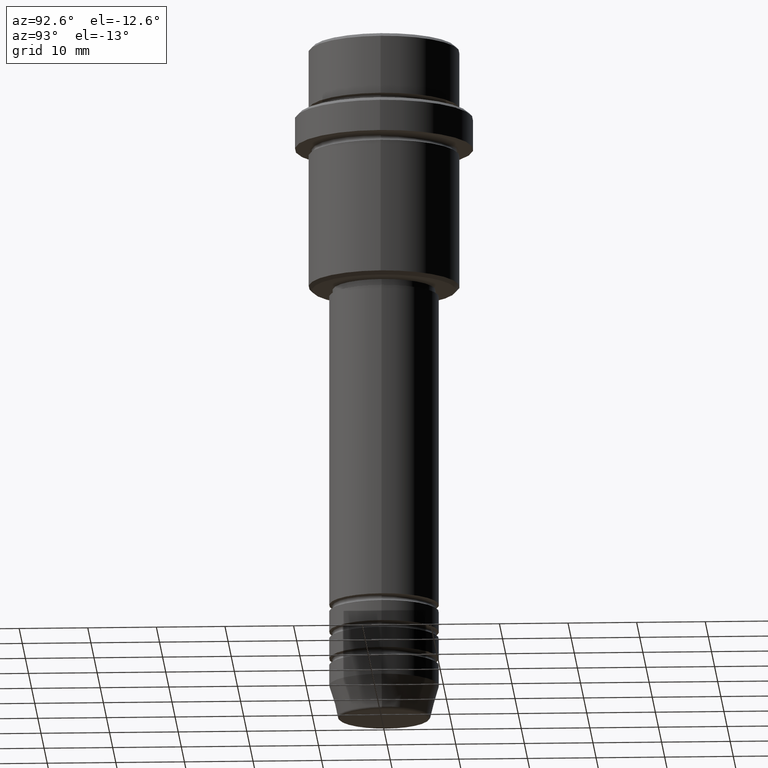
[diagram: clean part render]
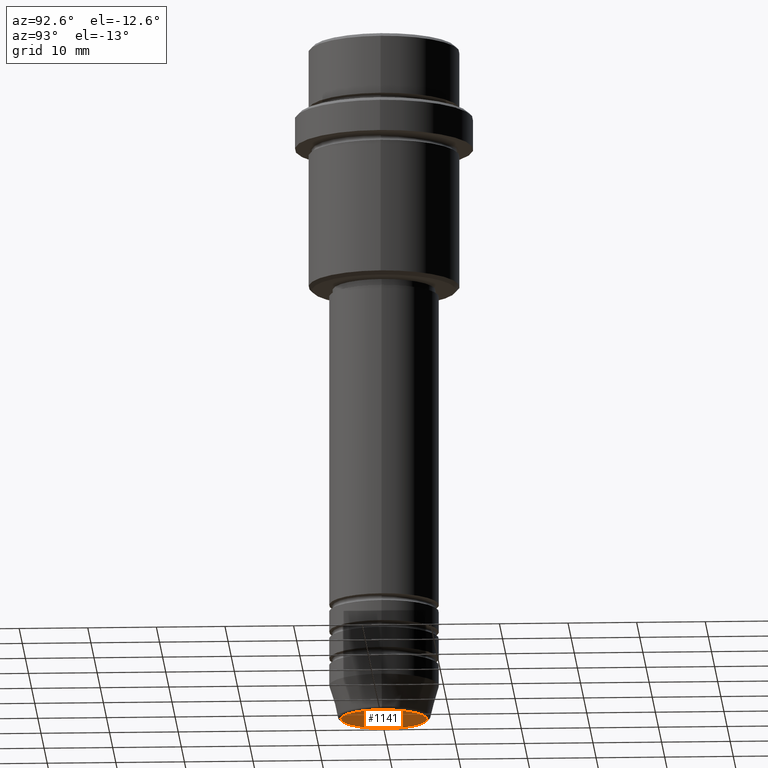
[diagram: same view with one face highlighted and labeled with its STEP entity id]
A machine part, auxiliary view. The second image highlights one B-rep face of the part: STEP entity #1141.
In plain terms, the highlighted planar face has unit normal (0, -0, 1).
Its self-contained STEP definition (entity closure, byte-faithful):
#120 = DIRECTION ( 'NONE',  ( 0.000000000000000000, -0.000000000000000000, 1.000000000000000000 ) ) ;
#132 = AXIS2_PLACEMENT_3D ( 'NONE', #1392, #1011, #452 ) ;
#140 = DIRECTION ( 'NONE',  ( 1.000000000000000000, 0.000000000000000000, 0.000000000000000000 ) ) ;
#168 = AXIS2_PLACEMENT_3D ( 'NONE', #1217, #218, #140 ) ;
#182 = ORIENTED_EDGE ( 'NONE', *, *, #1308, .T. ) ;
#189 = CARTESIAN_POINT ( 'NONE',  ( 6.276590543854900339, 0.000000000000000000, -100.0000000000000000 ) ) ;
#218 = DIRECTION ( 'NONE',  ( 0.000000000000000000, 0.000000000000000000, -1.000000000000000000 ) ) ;
#282 = AXIS2_PLACEMENT_3D ( 'NONE', #403, #120, #1034 ) ;
#297 = EDGE_CURVE ( 'NONE', #550, #1072, #1156, .T. ) ;
#403 = CARTESIAN_POINT ( 'NONE',  ( 0.000000000000000000, 0.000000000000000000, -100.0000000000000000 ) ) ;
#452 = DIRECTION ( 'NONE',  ( 1.000000000000000000, 0.000000000000000000, 0.000000000000000000 ) ) ;
#461 = ORIENTED_EDGE ( 'NONE', *, *, #297, .T. ) ;
#550 = VERTEX_POINT ( 'NONE', #953 ) ;
#848 = FACE_OUTER_BOUND ( 'NONE', #1009, .T. ) ;
#953 = CARTESIAN_POINT ( 'NONE',  ( -6.276590543854900339, 7.982336011935116411E-16, -100.0000000000000000 ) ) ;
#1009 = EDGE_LOOP ( 'NONE', ( #182, #461 ) ) ;
#1011 = DIRECTION ( 'NONE',  ( 0.000000000000000000, 0.000000000000000000, -1.000000000000000000 ) ) ;
#1034 = DIRECTION ( 'NONE',  ( 1.000000000000000000, 0.000000000000000000, 0.000000000000000000 ) ) ;
#1047 = CIRCLE ( 'NONE', #132, 6.276590543854900339 ) ;
#1072 = VERTEX_POINT ( 'NONE', #189 ) ;
#1141 = ADVANCED_FACE ( 'NONE', ( #848 ), #1309, .F. ) ;
#1156 = CIRCLE ( 'NONE', #168, 6.276590543854900339 ) ;
#1217 = CARTESIAN_POINT ( 'NONE',  ( 0.000000000000000000, 0.000000000000000000, -100.0000000000000000 ) ) ;
#1308 = EDGE_CURVE ( 'NONE', #1072, #550, #1047, .T. ) ;
#1309 = PLANE ( 'NONE',  #282 ) ;
#1392 = CARTESIAN_POINT ( 'NONE',  ( 0.000000000000000000, 0.000000000000000000, -100.0000000000000000 ) ) ;